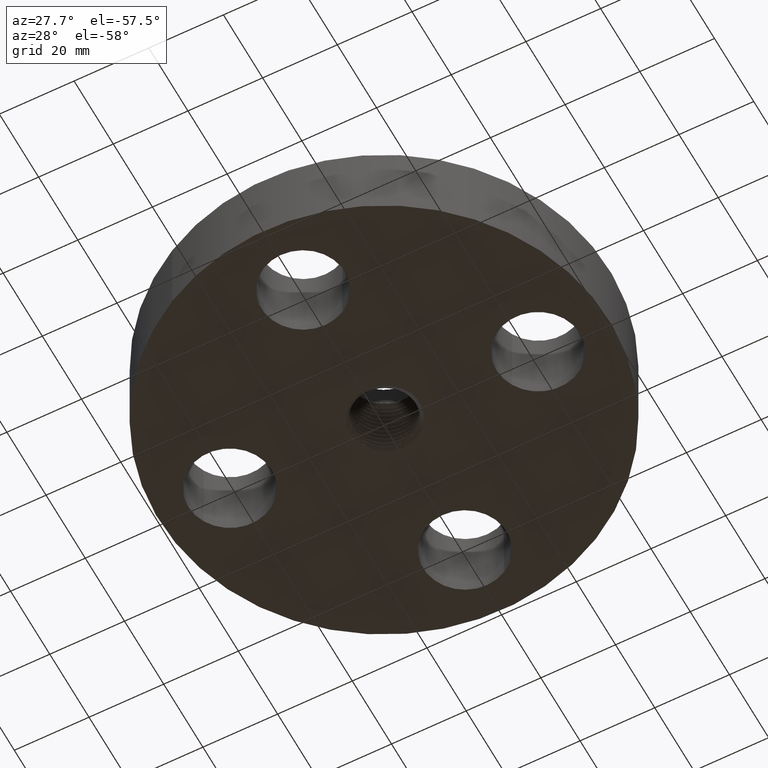
[diagram: clean part render]
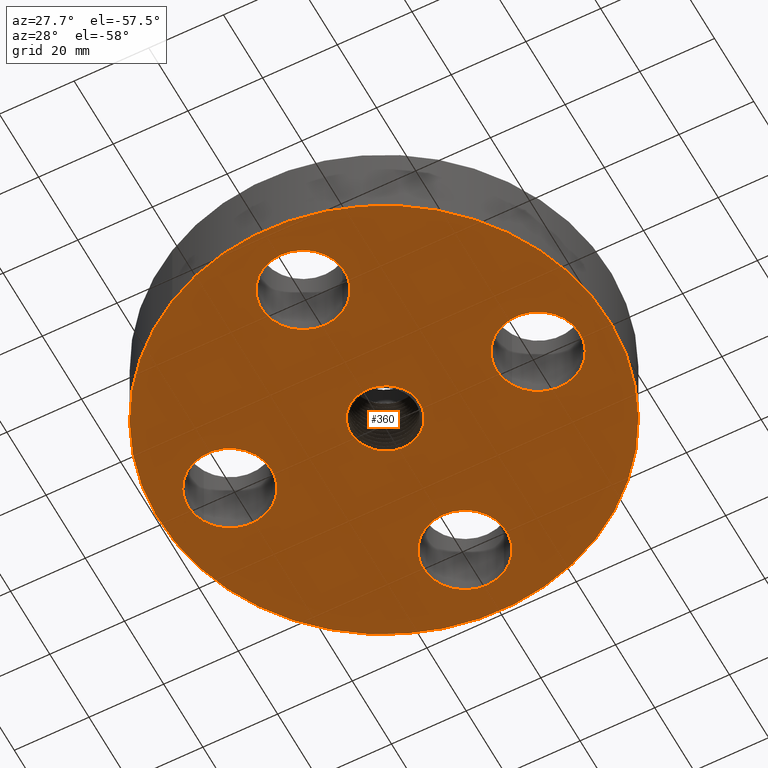
[diagram: same view with one face highlighted and labeled with its STEP entity id]
A machine part, auxiliary view. The second image highlights one B-rep face of the part: STEP entity #360.
In plain terms, the highlighted planar face has unit normal (0, 0, -1).
Its self-contained STEP definition (entity closure, byte-faithful):
#165=AXIS2_PLACEMENT_3D('Plane Axis2P3D',#162,#163,#164) ;
#169=AXIS2_PLACEMENT_3D('Circle Axis2P3D',#167,#168,$) ;
#178=AXIS2_PLACEMENT_3D('Circle Axis2P3D',#176,#177,$) ;
#276=AXIS2_PLACEMENT_3D('Circle Axis2P3D',#274,#275,$) ;
#290=AXIS2_PLACEMENT_3D('Circle Axis2P3D',#288,#289,$) ;
#299=AXIS2_PLACEMENT_3D('Circle Axis2P3D',#297,#298,$) ;
#308=AXIS2_PLACEMENT_3D('Circle Axis2P3D',#306,#307,$) ;
#317=AXIS2_PLACEMENT_3D('Circle Axis2P3D',#315,#316,$) ;
#326=AXIS2_PLACEMENT_3D('Circle Axis2P3D',#324,#325,$) ;
#335=AXIS2_PLACEMENT_3D('Circle Axis2P3D',#333,#334,$) ;
#344=AXIS2_PLACEMENT_3D('Circle Axis2P3D',#342,#343,$) ;
#353=AXIS2_PLACEMENT_3D('Circle Axis2P3D',#351,#352,$) ;
#162=CARTESIAN_POINT('Axis2P3D Location',(0.,0.,0.)) ;
#167=CARTESIAN_POINT('Axis2P3D Location',(0.,0.,0.)) ;
#171=CARTESIAN_POINT('Vertex',(1.13863565419,2.0842585845,2.09805925913E-016)) ;
#173=CARTESIAN_POINT('Vertex',(-1.13863565419,-2.0842585845,2.09805925913E-016)) ;
#176=CARTESIAN_POINT('Axis2P3D Location',(0.,0.,0.)) ;
#186=CARTESIAN_POINT('Control Point',(-3.09842042951E-005,-0.36984435906,0.)) ;
#187=CARTESIAN_POINT('Control Point',(-0.0394695627973,-0.367993478385,0.)) ;
#188=CARTESIAN_POINT('Control Point',(-0.0785429030713,-0.360879659952,0.)) ;
#189=CARTESIAN_POINT('Control Point',(-0.116302679717,-0.348565498957,0.)) ;
#190=CARTESIAN_POINT('Control Point',(-0.187349599269,-0.314192743347,0.)) ;
#191=CARTESIAN_POINT('Control Point',(-0.246328163236,-0.262509518496,0.)) ;
#192=CARTESIAN_POINT('Control Point',(-0.272027880812,-0.232874321865,0.)) ;
#193=CARTESIAN_POINT('Control Point',(-0.310295895441,-0.174095746662,0.)) ;
#194=CARTESIAN_POINT('Control Point',(-0.332928432357,-0.108374886542,0.)) ;
#195=CARTESIAN_POINT('Control Point',(-0.339694971349,-0.078254422268,0.)) ;
#196=CARTESIAN_POINT('Control Point',(-0.347035386112,-0.0118359538744,0.)) ;
#197=CARTESIAN_POINT('Control Point',(-0.338399605513,0.0541442279734,0.)) ;
#198=CARTESIAN_POINT('Control Point',(-0.329093386016,0.0888549006542,0.)) ;
#199=CARTESIAN_POINT('Control Point',(-0.315392323297,0.121817048498,0.)) ;
#200=CARTESIAN_POINT('Control Point',(-0.297725764951,0.152338872939,0.)) ;
#201=CARTESIAN_POINT('Vertex',(-3.09842042951E-005,-0.36984435906,-2.18547839493E-018)) ;
#203=CARTESIAN_POINT('Vertex',(-0.297726083533,0.152339055622,-2.48759846667E-007)) ;
#207=CARTESIAN_POINT('Control Point',(0.181449964918,-0.332180973178,0.)) ;
#208=CARTESIAN_POINT('Control Point',(0.150940210833,-0.347077523358,0.)) ;
#209=CARTESIAN_POINT('Control Point',(0.118831565934,-0.358513892753,0.)) ;
#210=CARTESIAN_POINT('Control Point',(0.085631954141,-0.366249538748,0.)) ;
#211=CARTESIAN_POINT('Control Point',(0.048255970955,-0.37058447027,0.)) ;
#212=CARTESIAN_POINT('Control Point',(0.0109728684065,-0.370223955822,0.)) ;
#213=CARTESIAN_POINT('Control Point',(0.00730162177522,-0.3701428921,0.)) ;
#214=CARTESIAN_POINT('Control Point',(0.00363374219598,-0.370016347288,0.)) ;
#215=CARTESIAN_POINT('Control Point',(-3.09842042951E-005,-0.36984435906,0.)) ;
#216=CARTESIAN_POINT('Vertex',(0.181449964918,-0.332180973178,-1.09273919747E-018)) ;
#220=CARTESIAN_POINT('Control Point',(0.360612749195,-0.149213252349,0.)) ;
#221=CARTESIAN_POINT('Control Point',(0.343172823133,-0.186578263264,0.)) ;
#222=CARTESIAN_POINT('Control Point',(0.320839919095,-0.221538038633,0.)) ;
#223=CARTESIAN_POINT('Control Point',(0.294029107394,-0.253234360191,0.)) ;
#224=CARTESIAN_POINT('Control Point',(0.254980035481,-0.288504469638,0.)) ;
#225=CARTESIAN_POINT('Control Point',(0.2110472236,-0.316350393764,0.)) ;
#226=CARTESIAN_POINT('Control Point',(0.201367267141,-0.321996514785,0.)) ;
#227=CARTESIAN_POINT('Control Point',(0.191495277977,-0.327276295466,0.)) ;
#228=CARTESIAN_POINT('Control Point',(0.181449964918,-0.332180973178,0.)) ;
#229=CARTESIAN_POINT('Vertex',(0.360612749195,-0.149213252349,3.41480999208E-020)) ;
#233=CARTESIAN_POINT('Control Point',(0.360612749195,-0.149213252349,0.)) ;
#234=CARTESIAN_POINT('Control Point',(0.374258679745,-0.111037959708,0.)) ;
#235=CARTESIAN_POINT('Control Point',(0.382900879365,-0.0712031464798,0.)) ;
#236=CARTESIAN_POINT('Control Point',(0.386249251462,-0.0305683628775,0.)) ;
#237=CARTESIAN_POINT('Control Point',(0.383028719189,0.0341840832691,0.)) ;
#238=CARTESIAN_POINT('Control Point',(0.366568429865,0.0962014486318,0.)) ;
#239=CARTESIAN_POINT('Control Point',(0.358577827711,0.118866142155,0.)) ;
#240=CARTESIAN_POINT('Control Point',(0.332609982202,0.177238451724,0.)) ;
#241=CARTESIAN_POINT('Control Point',(0.294944399767,0.228843110646,0.)) ;
#242=CARTESIAN_POINT('Control Point',(0.267301313241,0.25764274919,0.)) ;
#243=CARTESIAN_POINT('Control Point',(0.211411931273,0.302033717916,0.)) ;
#244=CARTESIAN_POINT('Control Point',(0.147154973104,0.331519691361,0.)) ;
#245=CARTESIAN_POINT('Control Point',(0.117359892237,0.341444439465,0.)) ;
#246=CARTESIAN_POINT('Control Point',(0.0757182695412,0.350432721109,0.)) ;
#247=CARTESIAN_POINT('Control Point',(0.0335890886726,0.353162064667,0.)) ;
#248=CARTESIAN_POINT('Control Point',(0.022355701714,0.353443139318,0.)) ;
#249=CARTESIAN_POINT('Control Point',(0.011135191988,0.353278289964,0.)) ;
#250=CARTESIAN_POINT('Control Point',(-4.85207254541E-005,0.35266950286,0.)) ;
#251=CARTESIAN_POINT('Vertex',(-4.85207254539E-005,0.35266950286,5.46369598733E-019)) ;
#255=CARTESIAN_POINT('Control Point',(-4.85207254539E-005,0.35266950286,0.)) ;
#256=CARTESIAN_POINT('Control Point',(-0.0350894644952,0.350762043618,0.)) ;
#257=CARTESIAN_POINT('Control Point',(-0.0697692718713,0.34449644464,0.)) ;
#258=CARTESIAN_POINT('Control Point',(-0.103374937636,0.333928811748,0.)) ;
#259=CARTESIAN_POINT('Control Point',(-0.135165376295,0.31931572906,0.)) ;
#260=CARTESIAN_POINT('Control Point',(-0.164541706432,0.301064291893,0.)) ;
#261=CARTESIAN_POINT('Vertex',(-0.164541706432,0.301064291893,0.)) ;
#265=CARTESIAN_POINT('Control Point',(-0.164541706432,0.301064291893,0.)) ;
#266=CARTESIAN_POINT('Control Point',(-0.190789191959,0.28475679767,0.)) ;
#267=CARTESIAN_POINT('Control Point',(-0.215109467785,0.265544699681,0.)) ;
#268=CARTESIAN_POINT('Control Point',(-0.237060134232,0.243723856253,0.)) ;
#269=CARTESIAN_POINT('Control Point',(-0.256272329547,0.219692336388,0.)) ;
#270=CARTESIAN_POINT('Control Point',(-0.272484395677,0.193907615048,0.)) ;
#271=CARTESIAN_POINT('Vertex',(-0.272484524587,0.193907709522,9.8960000579E-008)) ;
#274=CARTESIAN_POINT('Axis2P3D Location',(-3.49676543189E-017,2.62257407392E-017,0.)) ;
#288=CARTESIAN_POINT('Axis2P3D Location',(1.62500000001,-1.04902962957E-016,0.)) ;
#292=CARTESIAN_POINT('Vertex',(2.01113632724,-0.210947236987,0.)) ;
#294=CARTESIAN_POINT('Vertex',(1.23886367277,0.210947236987,0.)) ;
#297=CARTESIAN_POINT('Axis2P3D Location',(1.62500000001,-3.49676543189E-017,0.)) ;
#306=CARTESIAN_POINT('Axis2P3D Location',(-1.39870617276E-016,-1.62500000001,0.)) ;
#310=CARTESIAN_POINT('Vertex',(0.210947236987,-1.23886367277,0.)) ;
#312=CARTESIAN_POINT('Vertex',(-0.210947236987,-2.01113632724,0.)) ;
#315=CARTESIAN_POINT('Axis2P3D Location',(-3.1470888887E-016,-1.62500000001,0.)) ;
#324=CARTESIAN_POINT('Axis2P3D Location',(-1.62500000001,-1.74838271595E-016,0.)) ;
#328=CARTESIAN_POINT('Vertex',(-1.23886367277,-0.210947236987,0.)) ;
#330=CARTESIAN_POINT('Vertex',(-2.01113632724,0.210947236987,0.)) ;
#333=CARTESIAN_POINT('Axis2P3D Location',(-1.62500000001,-2.09805925913E-016,0.)) ;
#342=CARTESIAN_POINT('Axis2P3D Location',(-3.49676543189E-016,1.62500000001,0.)) ;
#346=CARTESIAN_POINT('Vertex',(-0.210947236987,1.23886367277,0.)) ;
#348=CARTESIAN_POINT('Vertex',(0.210947236987,2.01113632724,0.)) ;
#351=CARTESIAN_POINT('Axis2P3D Location',(-2.09805925913E-016,1.62500000001,0.)) ;
#163=DIRECTION('Axis2P3D Direction',(0.,0.,-0.0393700787402)) ;
#164=DIRECTION('Axis2P3D XDirection',(0.0393700787402,0.,0.)) ;
#168=DIRECTION('Axis2P3D Direction',(0.,0.,-0.0393700787402)) ;
#177=DIRECTION('Axis2P3D Direction',(0.,0.,-0.0393700787402)) ;
#275=DIRECTION('Axis2P3D Direction',(0.,0.,-0.0393700787402)) ;
#289=DIRECTION('Axis2P3D Direction',(0.,0.,-0.0393700787402)) ;
#298=DIRECTION('Axis2P3D Direction',(0.,0.,-0.0393700787402)) ;
#307=DIRECTION('Axis2P3D Direction',(0.,0.,-0.0393700787402)) ;
#316=DIRECTION('Axis2P3D Direction',(0.,0.,-0.0393700787402)) ;
#325=DIRECTION('Axis2P3D Direction',(0.,0.,-0.0393700787402)) ;
#334=DIRECTION('Axis2P3D Direction',(0.,0.,-0.0393700787402)) ;
#343=DIRECTION('Axis2P3D Direction',(0.,0.,-0.0393700787402)) ;
#352=DIRECTION('Axis2P3D Direction',(0.,0.,-0.0393700787402)) ;
#182=ORIENTED_EDGE('',*,*,#175,.T.) ;
#183=ORIENTED_EDGE('',*,*,#180,.T.) ;
#280=ORIENTED_EDGE('',*,*,#205,.F.) ;
#281=ORIENTED_EDGE('',*,*,#218,.F.) ;
#282=ORIENTED_EDGE('',*,*,#231,.F.) ;
#283=ORIENTED_EDGE('',*,*,#253,.T.) ;
#284=ORIENTED_EDGE('',*,*,#263,.T.) ;
#285=ORIENTED_EDGE('',*,*,#273,.T.) ;
#286=ORIENTED_EDGE('',*,*,#278,.F.) ;
#303=ORIENTED_EDGE('',*,*,#296,.F.) ;
#304=ORIENTED_EDGE('',*,*,#301,.F.) ;
#321=ORIENTED_EDGE('',*,*,#314,.F.) ;
#322=ORIENTED_EDGE('',*,*,#319,.F.) ;
#339=ORIENTED_EDGE('',*,*,#332,.F.) ;
#340=ORIENTED_EDGE('',*,*,#337,.F.) ;
#357=ORIENTED_EDGE('',*,*,#350,.F.) ;
#358=ORIENTED_EDGE('',*,*,#355,.F.) ;
#287=FACE_BOUND('',#279,.T.) ;
#305=FACE_BOUND('',#302,.T.) ;
#323=FACE_BOUND('',#320,.T.) ;
#341=FACE_BOUND('',#338,.T.) ;
#359=FACE_BOUND('',#356,.T.) ;
#360=ADVANCED_FACE('PartBody',(#184,#287,#305,#323,#341,#359),#166,.T.) ;
#185=B_SPLINE_CURVE_WITH_KNOTS('',5,(#186,#187,#188,#189,#190,#191,#192,#193,#194,#195,#196,#197,#198,#199,#200),.UNSPECIFIED.,.F.,.U.,(6,3,3,3,6),(0.,7.02362799185,14.0494391464,19.6679745733,26.2719067994),.UNSPECIFIED.) ;
#206=B_SPLINE_CURVE_WITH_KNOTS('',5,(#207,#208,#209,#210,#211,#212,#213,#214,#215),.UNSPECIFIED.,.F.,.U.,(6,3,6),(0.,5.97406716892,6.62671936497),.UNSPECIFIED.) ;
#219=B_SPLINE_CURVE_WITH_KNOTS('',5,(#220,#221,#222,#223,#224,#225,#226,#227,#228),.UNSPECIFIED.,.F.,.U.,(6,3,6),(0.,7.15805791118,9.12501493222),.UNSPECIFIED.) ;
#232=B_SPLINE_CURVE_WITH_KNOTS('',5,(#233,#234,#235,#236,#237,#238,#239,#240,#241,#242,#243,#244,#245,#246,#247,#248,#249,#250),.UNSPECIFIED.,.F.,.U.,(6,3,3,3,3,6),(0.,7.03803633348,11.2585325981,18.2926917284,23.9213618104,25.9651538443),.UNSPECIFIED.) ;
#254=B_SPLINE_CURVE_WITH_KNOTS('',5,(#255,#256,#257,#258,#259,#260),.UNSPECIFIED.,.F.,.U.,(6,6),(0.,6.40363389001),.UNSPECIFIED.) ;
#264=B_SPLINE_CURVE_WITH_KNOTS('',5,(#265,#266,#267,#268,#269,#270),.UNSPECIFIED.,.F.,.U.,(6,6),(0.,5.72158902057),.UNSPECIFIED.) ;
#170=CIRCLE('generated circle',#169,2.37500000001) ;
#179=CIRCLE('generated circle',#178,2.37500000001) ;
#277=CIRCLE('generated circle',#276,0.334436860832) ;
#291=CIRCLE('generated circle',#290,0.440000000002) ;
#300=CIRCLE('generated circle',#299,0.440000000002) ;
#309=CIRCLE('generated circle',#308,0.440000000002) ;
#318=CIRCLE('generated circle',#317,0.440000000002) ;
#327=CIRCLE('generated circle',#326,0.440000000002) ;
#336=CIRCLE('generated circle',#335,0.440000000002) ;
#345=CIRCLE('generated circle',#344,0.440000000002) ;
#354=CIRCLE('generated circle',#353,0.440000000002) ;
#175=EDGE_CURVE('',#172,#174,#170,.T.) ;
#180=EDGE_CURVE('',#174,#172,#179,.T.) ;
#205=EDGE_CURVE('',#202,#204,#185,.T.) ;
#218=EDGE_CURVE('',#217,#202,#206,.T.) ;
#231=EDGE_CURVE('',#230,#217,#219,.T.) ;
#253=EDGE_CURVE('',#230,#252,#232,.T.) ;
#263=EDGE_CURVE('',#252,#262,#254,.T.) ;
#273=EDGE_CURVE('',#262,#272,#264,.T.) ;
#278=EDGE_CURVE('',#204,#272,#277,.T.) ;
#296=EDGE_CURVE('',#293,#295,#291,.T.) ;
#301=EDGE_CURVE('',#295,#293,#300,.T.) ;
#314=EDGE_CURVE('',#311,#313,#309,.T.) ;
#319=EDGE_CURVE('',#313,#311,#318,.T.) ;
#332=EDGE_CURVE('',#329,#331,#327,.T.) ;
#337=EDGE_CURVE('',#331,#329,#336,.T.) ;
#350=EDGE_CURVE('',#347,#349,#345,.T.) ;
#355=EDGE_CURVE('',#349,#347,#354,.T.) ;
#181=EDGE_LOOP('',(#182,#183)) ;
#279=EDGE_LOOP('',(#280,#281,#282,#283,#284,#285,#286)) ;
#302=EDGE_LOOP('',(#303,#304)) ;
#320=EDGE_LOOP('',(#321,#322)) ;
#338=EDGE_LOOP('',(#339,#340)) ;
#356=EDGE_LOOP('',(#357,#358)) ;
#184=FACE_OUTER_BOUND('',#181,.T.) ;
#166=PLANE('',#165) ;
#172=VERTEX_POINT('',#171) ;
#174=VERTEX_POINT('',#173) ;
#202=VERTEX_POINT('',#201) ;
#204=VERTEX_POINT('',#203) ;
#217=VERTEX_POINT('',#216) ;
#230=VERTEX_POINT('',#229) ;
#252=VERTEX_POINT('',#251) ;
#262=VERTEX_POINT('',#261) ;
#272=VERTEX_POINT('',#271) ;
#293=VERTEX_POINT('',#292) ;
#295=VERTEX_POINT('',#294) ;
#311=VERTEX_POINT('',#310) ;
#313=VERTEX_POINT('',#312) ;
#329=VERTEX_POINT('',#328) ;
#331=VERTEX_POINT('',#330) ;
#347=VERTEX_POINT('',#346) ;
#349=VERTEX_POINT('',#348) ;